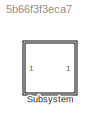
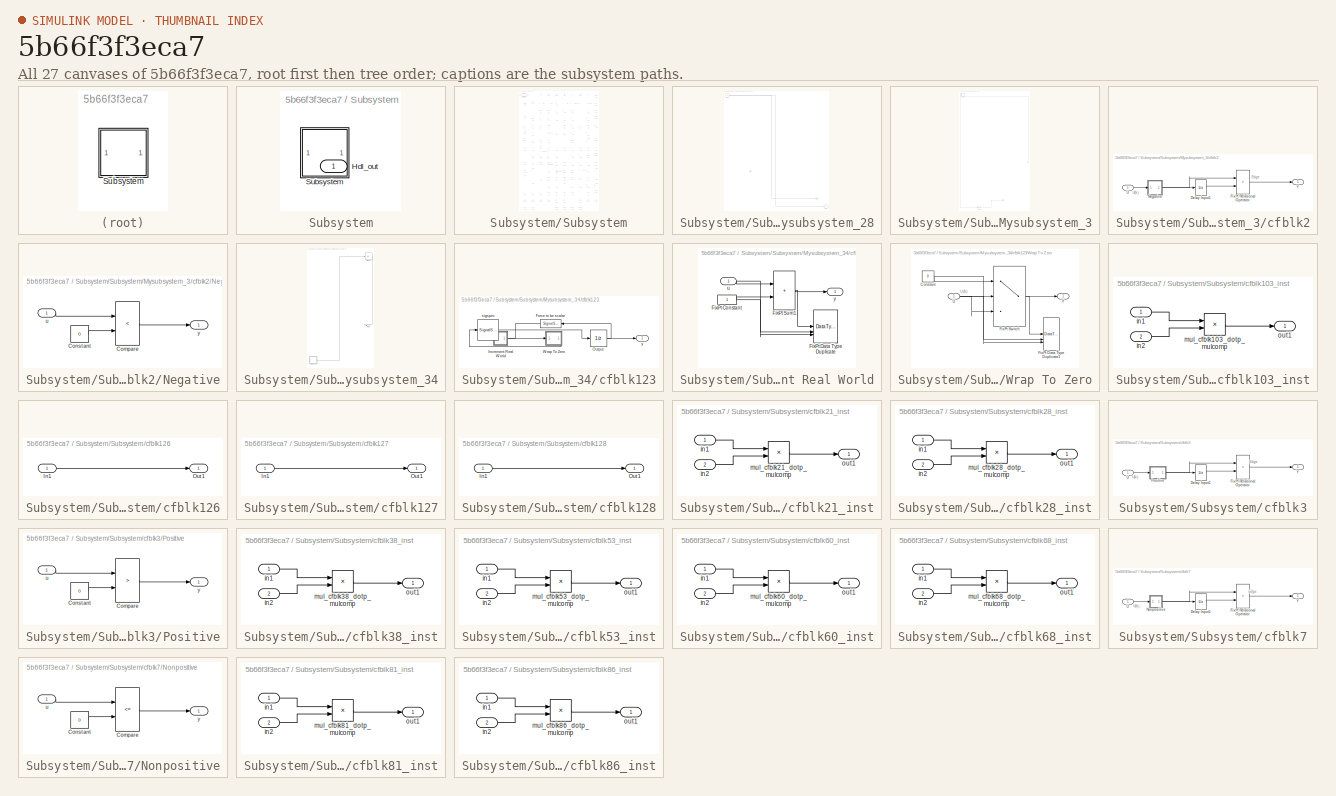
[diagram: thumbnail index - all 27 canvases of the model, root first then tree order]
MODEL slx_5b66f3f3eca7
KIND model
CONFIG AbsTol = auto
CONFIG EnableMultiTasking = off
CONFIG FixedStep = auto
CONFIG MaxStep = auto
CONFIG MinStep = auto
CONFIG RelTol = 1e-3
CONFIG SampleTimeConstraint = Unconstrained
CONFIG SolverName = VariableStepAuto
CONFIG StartTime = 0.0
CONFIG StopTime = 10.0
BLOCK [SubSystem] Subsystem
BLOCK [Outport] Subsystem/Hdl_out
  OutDataTypeStr = uint8
  SampleTime = 1
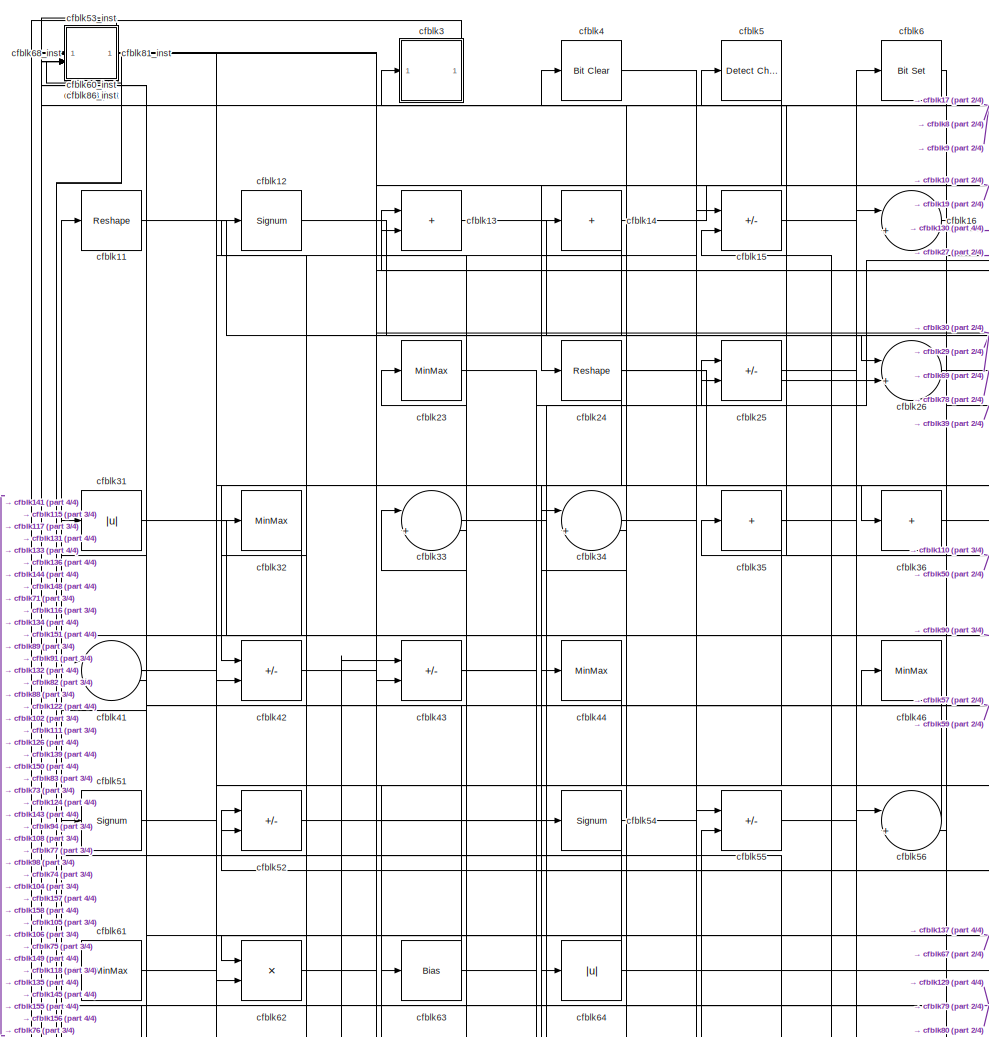
[diagram: Subsystem/Subsystem - part 1/4, top left region]
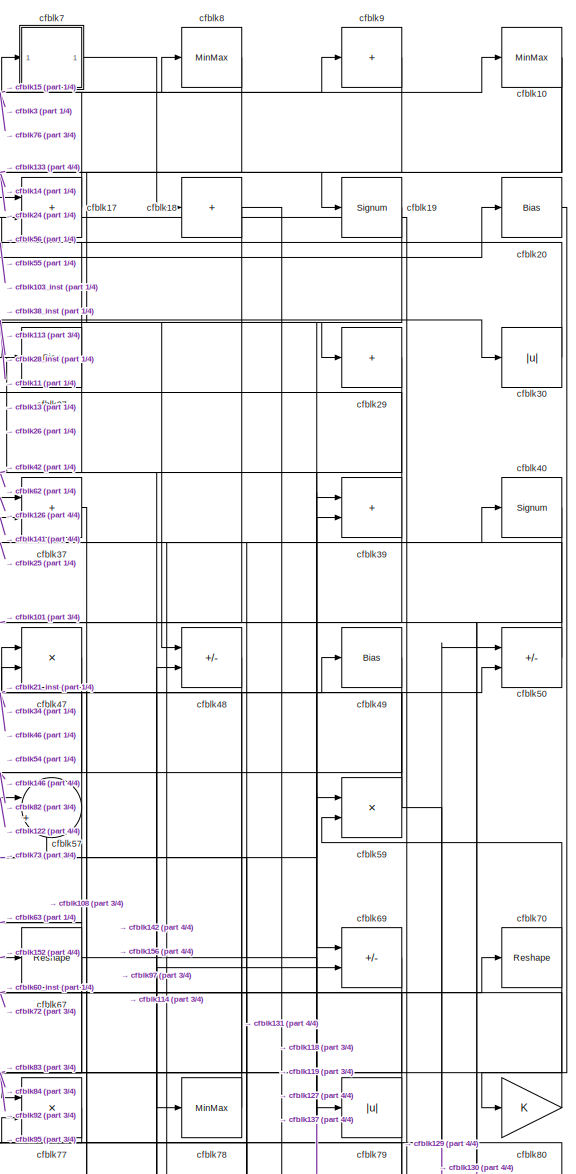
[diagram: Subsystem/Subsystem - part 2/4, top right region]
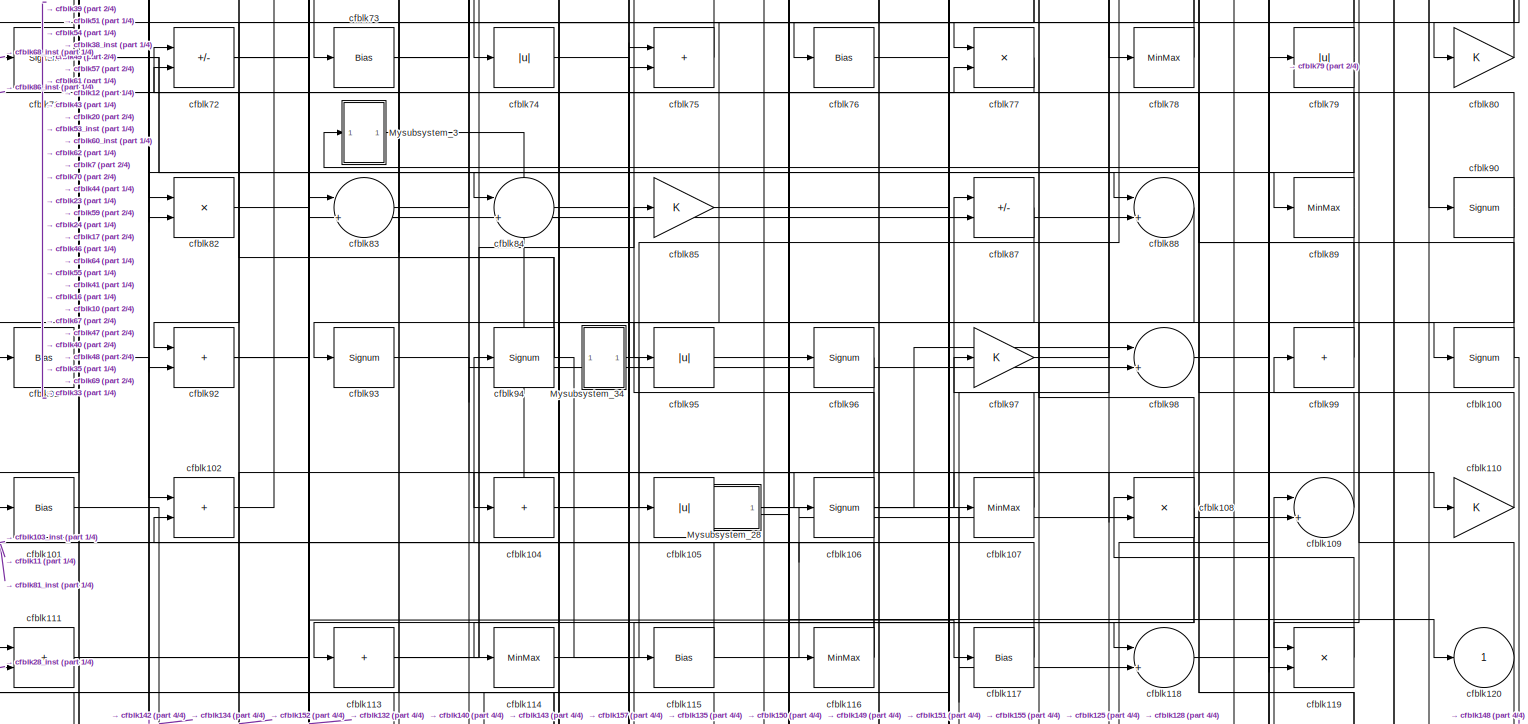
[diagram: Subsystem/Subsystem - part 3/4, full width, middle band]
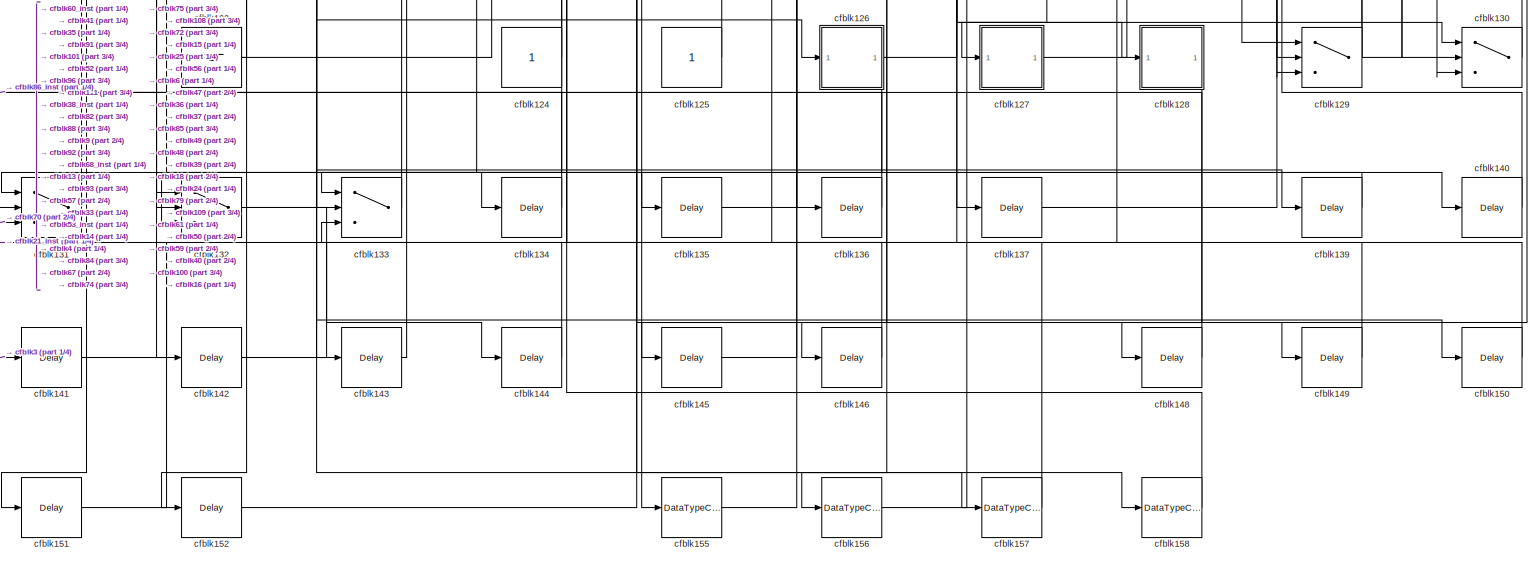
[diagram: Subsystem/Subsystem - part 4/4, full width, bottom band]
BLOCK [SubSystem] Subsystem/Subsystem
BLOCK [SubSystem] Subsystem/Subsystem/Mysubsystem_28
BLOCK [Inport] Subsystem/Subsystem/Mysubsystem_28/In1
  OutDataTypeStr = uint8
  PortDimensions = 1
  SampleTime = 1
BLOCK [Outport] Subsystem/Subsystem/Mysubsystem_28/Out1
  SampleTime = 1
BLOCK [Constant] Subsystem/Subsystem/Mysubsystem_28/cfblk1
  OutDataTypeStr = uint8
  SampleTime = 1
  Value = 0
BLOCK [Outport] Subsystem/Subsystem/Mysubsystem_28/cfblk120
  Port = 2
  SampleTime = 1
  VectorParamsAs1DForOutWhenUnconnected = off
BLOCK [SubSystem] Subsystem/Subsystem/Mysubsystem_3
BLOCK [Outport] Subsystem/Subsystem/Mysubsystem_3/Out1
  SampleTime = 1
BLOCK [Inport] Subsystem/Subsystem/Mysubsystem_3/U
  OutDataTypeStr = uint8
  PortDimensions = 1
  SampleTime = 1
BLOCK [DataTypeConversion] Subsystem/Subsystem/Mysubsystem_3/cfblk154
  OutDataTypeStr = uint8
  RndMeth = Floor
  SaturateOnIntegerOverflow = off
BLOCK [SubSystem] Subsystem/Subsystem/Mysubsystem_3/cfblk2
BLOCK [UnitDelay] Subsystem/Subsystem/Mysubsystem_3/cfblk2/Delay Input1
  Description = Store in Global RAM
  DisableCoverage = on
  HasFrameUpgradeWarning = on
  InitialCondition = vinit
  SampleTime = -1
BLOCK [RelationalOperator] Subsystem/Subsystem/Mysubsystem_3/cfblk2/FixPt Relational Operator
  InputSameDT = off
  Operator = >
  OutDataTypeStr = boolean
  ZeroCross = off
BLOCK [SubSystem] Subsystem/Subsystem/Mysubsystem_3/cfblk2/Negative
BLOCK [RelationalOperator] Subsystem/Subsystem/Mysubsystem_3/cfblk2/Negative/Compare
  Operator = <
  OutDataTypeStr = boolean
  ZeroCross = off
BLOCK [Constant] Subsystem/Subsystem/Mysubsystem_3/cfblk2/Negative/Constant
  DisableCoverage = on
  OutDataTypeStr = Inherit: Inherit via back propagation
  PreserveConstantTs = on
  SampleTime = -1
  Value = 0
BLOCK [Inport] Subsystem/Subsystem/Mysubsystem_3/cfblk2/Negative/u
  OutDataTypeStr = uint8
  SampleTime = 1
BLOCK [Outport] Subsystem/Subsystem/Mysubsystem_3/cfblk2/Negative/y
  SampleTime = 1
BLOCK [Inport] Subsystem/Subsystem/Mysubsystem_3/cfblk2/U
  OutDataTypeStr = uint8
  SampleTime = 1
BLOCK [Outport] Subsystem/Subsystem/Mysubsystem_3/cfblk2/Y
  SampleTime = 1
BLOCK [SubSystem] Subsystem/Subsystem/Mysubsystem_34
BLOCK [Outport] Subsystem/Subsystem/Mysubsystem_34/Out1
  SampleTime = 1
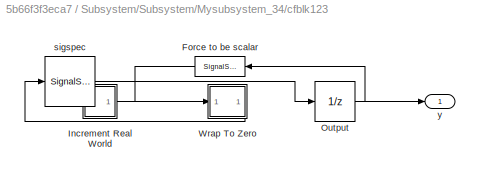
BLOCK [SubSystem] Subsystem/Subsystem/Mysubsystem_34/cfblk123
BLOCK [SignalSpecification] Subsystem/Subsystem/Mysubsystem_34/cfblk123/Force to be scalar
  Dimensions = 1
  DisableCoverage = on
BLOCK [SubSystem] Subsystem/Subsystem/Mysubsystem_34/cfblk123/Increment Real World
BLOCK [Constant] Subsystem/Subsystem/Mysubsystem_34/cfblk123/Increment Real World/FixPt Constant
  DisableCoverage = on
  OutDataTypeStr = Inherit: Inherit via back propagation
  SampleTime = -1
BLOCK [DataTypeDuplicate] Subsystem/Subsystem/Mysubsystem_34/cfblk123/Increment Real World/FixPt Data Type Duplicate
  DisableCoverage = on
  NumInputPorts = 3
BLOCK [Sum] Subsystem/Subsystem/Mysubsystem_34/cfblk123/Increment Real World/FixPt Sum1
  IconShape = rectangular
  InputSameDT = on
  LockScale = on
  OutDataTypeStr = Inherit: Inherit via back propagation
BLOCK [Inport] Subsystem/Subsystem/Mysubsystem_34/cfblk123/Increment Real World/u
  OutDataTypeStr = uint8
  SampleTime = 1
BLOCK [Outport] Subsystem/Subsystem/Mysubsystem_34/cfblk123/Increment Real World/y
  SampleTime = 1
BLOCK [UnitDelay] Subsystem/Subsystem/Mysubsystem_34/cfblk123/Output
  HasFrameUpgradeWarning = on
  InitialCondition = 0.0
  SampleTime = tsamp
BLOCK [SubSystem] Subsystem/Subsystem/Mysubsystem_34/cfblk123/Wrap To Zero
BLOCK [Constant] Subsystem/Subsystem/Mysubsystem_34/cfblk123/Wrap To Zero/Constant
  DisableCoverage = on
  OutDataTypeStr = Inherit: Inherit via back propagation
  SampleTime = -1
  Value = 0
BLOCK [DataTypeDuplicate] Subsystem/Subsystem/Mysubsystem_34/cfblk123/Wrap To Zero/FixPt Data Type Duplicate1
  DisableCoverage = on
  NumInputPorts = 3
BLOCK [Switch] Subsystem/Subsystem/Mysubsystem_34/cfblk123/Wrap To Zero/FixPt Switch
  Criteria = u2 > Threshold
  InputSameDT = off
  OutDataTypeStr = Inherit: Inherit via back propagation
  SaturateOnIntegerOverflow = off
  Threshold = Threshold
  ZeroCross = off
BLOCK [Inport] Subsystem/Subsystem/Mysubsystem_34/cfblk123/Wrap To Zero/U
  OutDataTypeStr = uint8
  SampleTime = 1
BLOCK [Outport] Subsystem/Subsystem/Mysubsystem_34/cfblk123/Wrap To Zero/Y
  SampleTime = 1
BLOCK [SignalSpecification] Subsystem/Subsystem/Mysubsystem_34/cfblk123/sigspec
  Dimensions = 1
  OutDataTypeStr = uint8
BLOCK [Outport] Subsystem/Subsystem/Mysubsystem_34/cfblk123/y
  SampleTime = 1
BLOCK [Abs] Subsystem/Subsystem/Mysubsystem_34/cfblk66
  SaturateOnIntegerOverflow = off
BLOCK [MinMax] Subsystem/Subsystem/cfblk10
  OutDataTypeStr = uint8
BLOCK [Signum] Subsystem/Subsystem/cfblk100
BLOCK [Bias] Subsystem/Subsystem/cfblk101
  Bias = 0.0
  SaturateOnIntegerOverflow = off
BLOCK [Sum] Subsystem/Subsystem/cfblk102
  IconShape = rectangular
  OutDataTypeStr = uint8
BLOCK [SubSystem] Subsystem/Subsystem/cfblk103_inst
BLOCK [Inport] Subsystem/Subsystem/cfblk103_inst/in1
  OutDataTypeStr = uint8
  SampleTime = 1
BLOCK [Inport] Subsystem/Subsystem/cfblk103_inst/in2
  OutDataTypeStr = uint8
  Port = 2
  SampleTime = 1
BLOCK [Product] Subsystem/Subsystem/cfblk103_inst/mul_cfblk103_dotp_mulcomp
  Inputs = **
  OutDataTypeStr = uint8
  SampleTime = 1
BLOCK [Outport] Subsystem/Subsystem/cfblk103_inst/out1
  OutDataTypeStr = uint8
  SampleTime = 1
BLOCK [Sum] Subsystem/Subsystem/cfblk104
  IconShape = rectangular
  Inputs = +
  OutDataTypeStr = uint8
BLOCK [Abs] Subsystem/Subsystem/cfblk105
  OutDataTypeStr = uint8
  SaturateOnIntegerOverflow = off
BLOCK [Signum] Subsystem/Subsystem/cfblk106
BLOCK [MinMax] Subsystem/Subsystem/cfblk107
  OutDataTypeStr = uint8
BLOCK [Product] Subsystem/Subsystem/cfblk108
  Inputs = */
  OutDataTypeStr = uint8
  RndMeth = Zero
  SaturateOnIntegerOverflow = on
BLOCK [Sum] Subsystem/Subsystem/cfblk109
  Inputs = |++
  OutDataTypeStr = uint8
BLOCK [Reshape] Subsystem/Subsystem/cfblk11
BLOCK [Gain] Subsystem/Subsystem/cfblk110
  OutDataTypeStr = uint8
BLOCK [Sum] Subsystem/Subsystem/cfblk111
  IconShape = rectangular
  OutDataTypeStr = uint8
BLOCK [Sum] Subsystem/Subsystem/cfblk113
  IconShape = rectangular
  Inputs = +
  OutDataTypeStr = uint8
BLOCK [MinMax] Subsystem/Subsystem/cfblk114
  OutDataTypeStr = uint8
BLOCK [Bias] Subsystem/Subsystem/cfblk115
  Bias = 0.0
  SaturateOnIntegerOverflow = off
BLOCK [MinMax] Subsystem/Subsystem/cfblk116
  OutDataTypeStr = uint8
BLOCK [Bias] Subsystem/Subsystem/cfblk117
  Bias = 0.0
  SaturateOnIntegerOverflow = off
BLOCK [Sum] Subsystem/Subsystem/cfblk118
  Inputs = |++
  OutDataTypeStr = uint8
BLOCK [Product] Subsystem/Subsystem/cfblk119
  Inputs = */
  OutDataTypeStr = uint8
  RndMeth = Zero
  SaturateOnIntegerOverflow = on
BLOCK [Signum] Subsystem/Subsystem/cfblk12
BLOCK [Outport] Subsystem/Subsystem/cfblk120
  OutDataTypeStr = uint8
  SampleTime = 1
  VectorParamsAs1DForOutWhenUnconnected = off
BLOCK [Ground] Subsystem/Subsystem/cfblk122
BLOCK [Constant] Subsystem/Subsystem/cfblk124
  OutDataTypeStr = uint8
  SampleTime = -1
BLOCK [Constant] Subsystem/Subsystem/cfblk125
  OutDataTypeStr = uint8
  SampleTime = -1
BLOCK [SubSystem] Subsystem/Subsystem/cfblk126
BLOCK [Inport] Subsystem/Subsystem/cfblk126/In1
  OutDataTypeStr = uint8
  PortDimensions = 1
  SampleTime = 1
BLOCK [Outport] Subsystem/Subsystem/cfblk126/Out1
  SampleTime = 1
BLOCK [SubSystem] Subsystem/Subsystem/cfblk127
BLOCK [Inport] Subsystem/Subsystem/cfblk127/In1
  OutDataTypeStr = uint8
  PortDimensions = 1
  SampleTime = 1
BLOCK [Outport] Subsystem/Subsystem/cfblk127/Out1
  SampleTime = 1
BLOCK [SubSystem] Subsystem/Subsystem/cfblk128
BLOCK [Inport] Subsystem/Subsystem/cfblk128/In1
  OutDataTypeStr = uint8
  PortDimensions = 1
  SampleTime = 1
BLOCK [Outport] Subsystem/Subsystem/cfblk128/Out1
  SampleTime = 1
BLOCK [Switch] Subsystem/Subsystem/cfblk129
  InputSameDT = off
  OutDataTypeStr = uint8
  SaturateOnIntegerOverflow = off
BLOCK [Sum] Subsystem/Subsystem/cfblk13
  IconShape = rectangular
  OutDataTypeStr = uint8
BLOCK [Switch] Subsystem/Subsystem/cfblk130
  InputSameDT = off
  OutDataTypeStr = uint8
  SaturateOnIntegerOverflow = off
BLOCK [Switch] Subsystem/Subsystem/cfblk131
  InputSameDT = off
  OutDataTypeStr = uint8
  SaturateOnIntegerOverflow = off
BLOCK [Switch] Subsystem/Subsystem/cfblk132
  InputSameDT = off
  OutDataTypeStr = uint8
  SaturateOnIntegerOverflow = off
BLOCK [Switch] Subsystem/Subsystem/cfblk133
  InputSameDT = off
  OutDataTypeStr = uint8
  SaturateOnIntegerOverflow = off
BLOCK [Delay] Subsystem/Subsystem/cfblk134
  InputPortMap = u0
  SampleTime = 1
BLOCK [Delay] Subsystem/Subsystem/cfblk135
  InputPortMap = u0
  SampleTime = 1
BLOCK [Delay] Subsystem/Subsystem/cfblk136
  InputPortMap = u0
  SampleTime = 1
BLOCK [Delay] Subsystem/Subsystem/cfblk137
  InputPortMap = u0
  SampleTime = 1
BLOCK [Delay] Subsystem/Subsystem/cfblk139
  InputPortMap = u0
  SampleTime = 1
BLOCK [Sum] Subsystem/Subsystem/cfblk14
  IconShape = rectangular
  Inputs = +
  OutDataTypeStr = uint8
BLOCK [Delay] Subsystem/Subsystem/cfblk140
  InputPortMap = u0
  SampleTime = 1
BLOCK [Delay] Subsystem/Subsystem/cfblk141
  InputPortMap = u0
  SampleTime = 1
BLOCK [Delay] Subsystem/Subsystem/cfblk142
  InputPortMap = u0
  SampleTime = 1
BLOCK [Delay] Subsystem/Subsystem/cfblk143
  InputPortMap = u0
  SampleTime = 1
BLOCK [Delay] Subsystem/Subsystem/cfblk144
  InputPortMap = u0
  SampleTime = 1
BLOCK [Delay] Subsystem/Subsystem/cfblk145
  InputPortMap = u0
  SampleTime = 1
BLOCK [Delay] Subsystem/Subsystem/cfblk146
  InputPortMap = u0
  SampleTime = 1
BLOCK [Delay] Subsystem/Subsystem/cfblk148
  InputPortMap = u0
  SampleTime = 1
BLOCK [Delay] Subsystem/Subsystem/cfblk149
  InputPortMap = u0
  SampleTime = 1
BLOCK [Sum] Subsystem/Subsystem/cfblk15
  IconShape = rectangular
  Inputs = +-
  OutDataTypeStr = uint8
BLOCK [Delay] Subsystem/Subsystem/cfblk150
  InputPortMap = u0
  SampleTime = 1
BLOCK [Delay] Subsystem/Subsystem/cfblk151
  InputPortMap = u0
  SampleTime = 1
BLOCK [Delay] Subsystem/Subsystem/cfblk152
  InputPortMap = u0
  SampleTime = 1
BLOCK [DataTypeConversion] Subsystem/Subsystem/cfblk155
  OutDataTypeStr = uint8
  RndMeth = Floor
  SaturateOnIntegerOverflow = off
BLOCK [DataTypeConversion] Subsystem/Subsystem/cfblk156
  OutDataTypeStr = uint8
  RndMeth = Floor
  SaturateOnIntegerOverflow = off
BLOCK [DataTypeConversion] Subsystem/Subsystem/cfblk157
  OutDataTypeStr = uint8
  RndMeth = Floor
  SaturateOnIntegerOverflow = off
BLOCK [DataTypeConversion] Subsystem/Subsystem/cfblk158
  OutDataTypeStr = uint8
  RndMeth = Floor
  SaturateOnIntegerOverflow = off
BLOCK [Sum] Subsystem/Subsystem/cfblk16
  Inputs = |++
  OutDataTypeStr = uint8
BLOCK [Sum] Subsystem/Subsystem/cfblk17
  IconShape = rectangular
  OutDataTypeStr = uint8
BLOCK [Sum] Subsystem/Subsystem/cfblk18
  IconShape = rectangular
  Inputs = +
  OutDataTypeStr = uint8
BLOCK [Signum] Subsystem/Subsystem/cfblk19
BLOCK [Bias] Subsystem/Subsystem/cfblk20
  Bias = 0.0
  SaturateOnIntegerOverflow = off
BLOCK [SubSystem] Subsystem/Subsystem/cfblk21_inst
BLOCK [Inport] Subsystem/Subsystem/cfblk21_inst/in1
  OutDataTypeStr = uint8
  SampleTime = 1
BLOCK [Inport] Subsystem/Subsystem/cfblk21_inst/in2
  OutDataTypeStr = uint8
  Port = 2
  SampleTime = 1
BLOCK [Product] Subsystem/Subsystem/cfblk21_inst/mul_cfblk21_dotp_mulcomp
  Inputs = **
  OutDataTypeStr = uint8
  SampleTime = 1
BLOCK [Outport] Subsystem/Subsystem/cfblk21_inst/out1
  OutDataTypeStr = uint8
  SampleTime = 1
BLOCK [MinMax] Subsystem/Subsystem/cfblk23
  OutDataTypeStr = uint8
BLOCK [Reshape] Subsystem/Subsystem/cfblk24
BLOCK [Sum] Subsystem/Subsystem/cfblk25
  IconShape = rectangular
  Inputs = +-
  OutDataTypeStr = uint8
BLOCK [Sum] Subsystem/Subsystem/cfblk26
  Inputs = |++
  OutDataTypeStr = uint8
BLOCK [Bias] Subsystem/Subsystem/cfblk27
  Bias = 0.0
  SaturateOnIntegerOverflow = off
BLOCK [SubSystem] Subsystem/Subsystem/cfblk28_inst
BLOCK [Inport] Subsystem/Subsystem/cfblk28_inst/in1
  OutDataTypeStr = uint8
  SampleTime = 1
BLOCK [Inport] Subsystem/Subsystem/cfblk28_inst/in2
  OutDataTypeStr = uint8
  Port = 2
  SampleTime = 1
BLOCK [Product] Subsystem/Subsystem/cfblk28_inst/mul_cfblk28_dotp_mulcomp
  Inputs = **
  OutDataTypeStr = uint8
  SampleTime = 1
BLOCK [Outport] Subsystem/Subsystem/cfblk28_inst/out1
  OutDataTypeStr = uint8
  SampleTime = 1
BLOCK [Sum] Subsystem/Subsystem/cfblk29
  IconShape = rectangular
  Inputs = +
  OutDataTypeStr = uint8
BLOCK [SubSystem] Subsystem/Subsystem/cfblk3
BLOCK [UnitDelay] Subsystem/Subsystem/cfblk3/Delay Input1
  Description = Store in Global RAM
  DisableCoverage = on
  HasFrameUpgradeWarning = on
  InitialCondition = vinit
  SampleTime = -1
BLOCK [RelationalOperator] Subsystem/Subsystem/cfblk3/FixPt Relational Operator
  InputSameDT = off
  Operator = >
  OutDataTypeStr = fixdt(0, 8)
  ZeroCross = off
BLOCK [SubSystem] Subsystem/Subsystem/cfblk3/Positive
BLOCK [RelationalOperator] Subsystem/Subsystem/cfblk3/Positive/Compare
  Operator = >
  OutDataTypeStr = boolean
  ZeroCross = off
BLOCK [Constant] Subsystem/Subsystem/cfblk3/Positive/Constant
  DisableCoverage = on
  OutDataTypeStr = Inherit: Inherit via back propagation
  PreserveConstantTs = on
  SampleTime = -1
  Value = 0
BLOCK [Inport] Subsystem/Subsystem/cfblk3/Positive/u
  OutDataTypeStr = uint8
  SampleTime = 1
BLOCK [Outport] Subsystem/Subsystem/cfblk3/Positive/y
  SampleTime = 1
BLOCK [Inport] Subsystem/Subsystem/cfblk3/U
  OutDataTypeStr = uint8
  SampleTime = 1
BLOCK [Outport] Subsystem/Subsystem/cfblk3/Y
  SampleTime = 1
BLOCK [Abs] Subsystem/Subsystem/cfblk30
  OutDataTypeStr = uint8
  SaturateOnIntegerOverflow = off
BLOCK [Abs] Subsystem/Subsystem/cfblk31
  OutDataTypeStr = uint8
  SaturateOnIntegerOverflow = off
BLOCK [MinMax] Subsystem/Subsystem/cfblk32
  OutDataTypeStr = uint8
BLOCK [Sum] Subsystem/Subsystem/cfblk33
  Inputs = |++
  OutDataTypeStr = uint8
BLOCK [Sum] Subsystem/Subsystem/cfblk34
  Inputs = |++
  OutDataTypeStr = uint8
BLOCK [Sum] Subsystem/Subsystem/cfblk35
  IconShape = rectangular
  Inputs = +
  OutDataTypeStr = uint8
BLOCK [Sum] Subsystem/Subsystem/cfblk36
  IconShape = rectangular
  Inputs = +
  OutDataTypeStr = uint8
BLOCK [Sum] Subsystem/Subsystem/cfblk37
  IconShape = rectangular
  OutDataTypeStr = uint8
BLOCK [SubSystem] Subsystem/Subsystem/cfblk38_inst
BLOCK [Inport] Subsystem/Subsystem/cfblk38_inst/in1
  OutDataTypeStr = uint8
  SampleTime = 1
BLOCK [Inport] Subsystem/Subsystem/cfblk38_inst/in2
  OutDataTypeStr = uint8
  Port = 2
  SampleTime = 1
BLOCK [Product] Subsystem/Subsystem/cfblk38_inst/mul_cfblk38_dotp_mulcomp
  Inputs = **
  OutDataTypeStr = uint8
  SampleTime = 1
BLOCK [Outport] Subsystem/Subsystem/cfblk38_inst/out1
  OutDataTypeStr = uint8
  SampleTime = 1
BLOCK [Sum] Subsystem/Subsystem/cfblk39
  IconShape = rectangular
  OutDataTypeStr = uint8
BLOCK [Reference] Subsystem/Subsystem/cfblk4  REF=simulink/Logic and Bit
Operations/Bit Clear
  LibrarySourceBlock = hdlsllib/Logic and Bit\nOperations/Bit Clear
  SourceBlock = simulink/Logic and Bit\nOperations/Bit Clear
  SourceType = Bit Clear
BLOCK [Signum] Subsystem/Subsystem/cfblk40
BLOCK [Sum] Subsystem/Subsystem/cfblk41
  Inputs = |++
  OutDataTypeStr = uint8
BLOCK [Sum] Subsystem/Subsystem/cfblk42
  IconShape = rectangular
  Inputs = +-
  OutDataTypeStr = uint8
BLOCK [Sum] Subsystem/Subsystem/cfblk43
  IconShape = rectangular
  Inputs = +-
  OutDataTypeStr = uint8
BLOCK [MinMax] Subsystem/Subsystem/cfblk44
  OutDataTypeStr = uint8
BLOCK [MinMax] Subsystem/Subsystem/cfblk46
  OutDataTypeStr = uint8
BLOCK [Product] Subsystem/Subsystem/cfblk47
  Inputs = */
  OutDataTypeStr = uint8
  RndMeth = Zero
  SaturateOnIntegerOverflow = on
BLOCK [Sum] Subsystem/Subsystem/cfblk48
  IconShape = rectangular
  Inputs = +-
  OutDataTypeStr = uint8
BLOCK [Bias] Subsystem/Subsystem/cfblk49
  Bias = 0.0
  SaturateOnIntegerOverflow = off
BLOCK [Reference] Subsystem/Subsystem/cfblk5  REF=simulink/Logic and Bit
Operations/Detect
Change
  LibrarySourceBlock = hdlsllib/Logic and Bit\nOperations/Detect\nChange
  SourceBlock = simulink/Logic and Bit\nOperations/Detect\nChange
  SourceType = Detect Change
BLOCK [Sum] Subsystem/Subsystem/cfblk50
  IconShape = rectangular
  Inputs = +-
  OutDataTypeStr = uint8
BLOCK [Signum] Subsystem/Subsystem/cfblk51
BLOCK [Sum] Subsystem/Subsystem/cfblk52
  IconShape = rectangular
  Inputs = +-
  OutDataTypeStr = uint8
BLOCK [SubSystem] Subsystem/Subsystem/cfblk53_inst
BLOCK [Inport] Subsystem/Subsystem/cfblk53_inst/in1
  OutDataTypeStr = uint8
  SampleTime = 1
BLOCK [Inport] Subsystem/Subsystem/cfblk53_inst/in2
  OutDataTypeStr = uint8
  Port = 2
  SampleTime = 1
BLOCK [Product] Subsystem/Subsystem/cfblk53_inst/mul_cfblk53_dotp_mulcomp
  Inputs = **
  OutDataTypeStr = uint8
  SampleTime = 1
BLOCK [Outport] Subsystem/Subsystem/cfblk53_inst/out1
  OutDataTypeStr = uint8
  SampleTime = 1
BLOCK [Signum] Subsystem/Subsystem/cfblk54
BLOCK [Sum] Subsystem/Subsystem/cfblk55
  IconShape = rectangular
  Inputs = +-
  OutDataTypeStr = uint8
BLOCK [Sum] Subsystem/Subsystem/cfblk56
  Inputs = |++
  OutDataTypeStr = uint8
BLOCK [Sum] Subsystem/Subsystem/cfblk57
  Inputs = |++
  OutDataTypeStr = uint8
BLOCK [Product] Subsystem/Subsystem/cfblk59
  Inputs = */
  OutDataTypeStr = uint8
  RndMeth = Zero
  SaturateOnIntegerOverflow = on
BLOCK [Reference] Subsystem/Subsystem/cfblk6  REF=simulink/Logic and Bit
Operations/Bit Set
  LibrarySourceBlock = hdlsllib/Logic and Bit\nOperations/Bit Set
  SourceBlock = simulink/Logic and Bit\nOperations/Bit Set
  SourceType = Bit Set
BLOCK [SubSystem] Subsystem/Subsystem/cfblk60_inst
BLOCK [Inport] Subsystem/Subsystem/cfblk60_inst/in1
  OutDataTypeStr = uint8
  SampleTime = 1
BLOCK [Inport] Subsystem/Subsystem/cfblk60_inst/in2
  OutDataTypeStr = uint8
  Port = 2
  SampleTime = 1
BLOCK [Product] Subsystem/Subsystem/cfblk60_inst/mul_cfblk60_dotp_mulcomp
  Inputs = **
  OutDataTypeStr = uint8
  SampleTime = 1
BLOCK [Outport] Subsystem/Subsystem/cfblk60_inst/out1
  OutDataTypeStr = uint8
  SampleTime = 1
BLOCK [MinMax] Subsystem/Subsystem/cfblk61
  OutDataTypeStr = uint8
BLOCK [Product] Subsystem/Subsystem/cfblk62
  Inputs = */
  OutDataTypeStr = uint8
  RndMeth = Zero
  SaturateOnIntegerOverflow = on
BLOCK [Bias] Subsystem/Subsystem/cfblk63
  Bias = 0.0
  SaturateOnIntegerOverflow = off
BLOCK [Abs] Subsystem/Subsystem/cfblk64
  OutDataTypeStr = uint8
  SaturateOnIntegerOverflow = off
BLOCK [Reshape] Subsystem/Subsystem/cfblk67
BLOCK [SubSystem] Subsystem/Subsystem/cfblk68_inst
BLOCK [Inport] Subsystem/Subsystem/cfblk68_inst/in1
  OutDataTypeStr = uint8
  SampleTime = 1
BLOCK [Inport] Subsystem/Subsystem/cfblk68_inst/in2
  OutDataTypeStr = uint8
  Port = 2
  SampleTime = 1
BLOCK [Product] Subsystem/Subsystem/cfblk68_inst/mul_cfblk68_dotp_mulcomp
  Inputs = **
  OutDataTypeStr = uint8
  SampleTime = 1
BLOCK [Outport] Subsystem/Subsystem/cfblk68_inst/out1
  OutDataTypeStr = uint8
  SampleTime = 1
BLOCK [Sum] Subsystem/Subsystem/cfblk69
  IconShape = rectangular
  Inputs = +-
  OutDataTypeStr = uint8
BLOCK [SubSystem] Subsystem/Subsystem/cfblk7
BLOCK [UnitDelay] Subsystem/Subsystem/cfblk7/Delay Input1
  Description = Store in Global RAM
  DisableCoverage = on
  HasFrameUpgradeWarning = on
  InitialCondition = vinit
  SampleTime = -1
BLOCK [RelationalOperator] Subsystem/Subsystem/cfblk7/FixPt Relational Operator
  InputSameDT = off
  Operator = >
  OutDataTypeStr = fixdt(0, 8)
  ZeroCross = off
BLOCK [SubSystem] Subsystem/Subsystem/cfblk7/Nonpositive
BLOCK [RelationalOperator] Subsystem/Subsystem/cfblk7/Nonpositive/Compare
  Operator = <=
  OutDataTypeStr = boolean
  ZeroCross = off
BLOCK [Constant] Subsystem/Subsystem/cfblk7/Nonpositive/Constant
  DisableCoverage = on
  OutDataTypeStr = Inherit: Inherit via back propagation
  PreserveConstantTs = on
  SampleTime = -1
  Value = 0
BLOCK [Inport] Subsystem/Subsystem/cfblk7/Nonpositive/u
  OutDataTypeStr = uint8
  SampleTime = 1
BLOCK [Outport] Subsystem/Subsystem/cfblk7/Nonpositive/y
  SampleTime = 1
BLOCK [Inport] Subsystem/Subsystem/cfblk7/U
  OutDataTypeStr = uint8
  SampleTime = 1
BLOCK [Outport] Subsystem/Subsystem/cfblk7/Y
  SampleTime = 1
BLOCK [Reshape] Subsystem/Subsystem/cfblk70
BLOCK [Signum] Subsystem/Subsystem/cfblk71
BLOCK [Sum] Subsystem/Subsystem/cfblk72
  IconShape = rectangular
  Inputs = +-
  OutDataTypeStr = uint8
BLOCK [Bias] Subsystem/Subsystem/cfblk73
  Bias = 0.0
  SaturateOnIntegerOverflow = off
BLOCK [Abs] Subsystem/Subsystem/cfblk74
  OutDataTypeStr = uint8
  SaturateOnIntegerOverflow = off
BLOCK [Sum] Subsystem/Subsystem/cfblk75
  IconShape = rectangular
  OutDataTypeStr = uint8
BLOCK [Bias] Subsystem/Subsystem/cfblk76
  Bias = 0.0
  SaturateOnIntegerOverflow = off
BLOCK [Product] Subsystem/Subsystem/cfblk77
  Inputs = */
  OutDataTypeStr = uint8
  RndMeth = Zero
  SaturateOnIntegerOverflow = on
BLOCK [MinMax] Subsystem/Subsystem/cfblk78
  OutDataTypeStr = uint8
BLOCK [Abs] Subsystem/Subsystem/cfblk79
  OutDataTypeStr = uint8
  SaturateOnIntegerOverflow = off
BLOCK [MinMax] Subsystem/Subsystem/cfblk8
  OutDataTypeStr = uint8
BLOCK [Gain] Subsystem/Subsystem/cfblk80
  OutDataTypeStr = uint8
BLOCK [SubSystem] Subsystem/Subsystem/cfblk81_inst
BLOCK [Inport] Subsystem/Subsystem/cfblk81_inst/in1
  OutDataTypeStr = uint8
  SampleTime = 1
BLOCK [Inport] Subsystem/Subsystem/cfblk81_inst/in2
  OutDataTypeStr = uint8
  Port = 2
  SampleTime = 1
BLOCK [Product] Subsystem/Subsystem/cfblk81_inst/mul_cfblk81_dotp_mulcomp
  Inputs = **
  OutDataTypeStr = uint8
  SampleTime = 1
BLOCK [Outport] Subsystem/Subsystem/cfblk81_inst/out1
  OutDataTypeStr = uint8
  SampleTime = 1
BLOCK [Product] Subsystem/Subsystem/cfblk82
  Inputs = */
  OutDataTypeStr = uint8
  RndMeth = Zero
  SaturateOnIntegerOverflow = on
BLOCK [Sum] Subsystem/Subsystem/cfblk83
  Inputs = |++
  OutDataTypeStr = uint8
BLOCK [Sum] Subsystem/Subsystem/cfblk84
  Inputs = |++
  OutDataTypeStr = uint8
BLOCK [Gain] Subsystem/Subsystem/cfblk85
  OutDataTypeStr = uint8
BLOCK [SubSystem] Subsystem/Subsystem/cfblk86_inst
BLOCK [Inport] Subsystem/Subsystem/cfblk86_inst/in1
  OutDataTypeStr = uint8
  SampleTime = 1
BLOCK [Inport] Subsystem/Subsystem/cfblk86_inst/in2
  OutDataTypeStr = uint8
  Port = 2
  SampleTime = 1
BLOCK [Product] Subsystem/Subsystem/cfblk86_inst/mul_cfblk86_dotp_mulcomp
  Inputs = **
  OutDataTypeStr = uint8
  SampleTime = 1
BLOCK [Outport] Subsystem/Subsystem/cfblk86_inst/out1
  OutDataTypeStr = uint8
  SampleTime = 1
BLOCK [Sum] Subsystem/Subsystem/cfblk87
  IconShape = rectangular
  Inputs = +-
  OutDataTypeStr = uint8
BLOCK [Sum] Subsystem/Subsystem/cfblk88
  Inputs = |++
  OutDataTypeStr = uint8
BLOCK [MinMax] Subsystem/Subsystem/cfblk89
  OutDataTypeStr = uint8
BLOCK [Sum] Subsystem/Subsystem/cfblk9
  IconShape = rectangular
  Inputs = +
  OutDataTypeStr = uint8
BLOCK [Signum] Subsystem/Subsystem/cfblk90
BLOCK [Bias] Subsystem/Subsystem/cfblk91
  Bias = 0.0
  SaturateOnIntegerOverflow = off
BLOCK [Sum] Subsystem/Subsystem/cfblk92
  IconShape = rectangular
  OutDataTypeStr = uint8
BLOCK [Signum] Subsystem/Subsystem/cfblk93
BLOCK [Signum] Subsystem/Subsystem/cfblk94
BLOCK [Abs] Subsystem/Subsystem/cfblk95
  OutDataTypeStr = uint8
  SaturateOnIntegerOverflow = off
BLOCK [Signum] Subsystem/Subsystem/cfblk96
BLOCK [Gain] Subsystem/Subsystem/cfblk97
  OutDataTypeStr = uint8
BLOCK [Sum] Subsystem/Subsystem/cfblk98
  Inputs = |++
  OutDataTypeStr = uint8
BLOCK [Sum] Subsystem/Subsystem/cfblk99
  IconShape = rectangular
  Inputs = +
  OutDataTypeStr = uint8
ANNOTATION Subsystem/Subsystem/Mysubsystem_3/cfblk2: Edge
ANNOTATION Subsystem/Subsystem/Mysubsystem_3/cfblk2: U(k)
ANNOTATION Subsystem/Subsystem/Mysubsystem_34/cfblk123/Wrap To Zero: U(k)
ANNOTATION Subsystem/Subsystem/cfblk3: Edge
ANNOTATION Subsystem/Subsystem/cfblk3: U(k)
ANNOTATION Subsystem/Subsystem/cfblk7: Edge
ANNOTATION Subsystem/Subsystem/cfblk7: U(k)
NET Subsystem/Subsystem/Mysubsystem_28/cfblk1:1 -> Subsystem/Subsystem/Mysubsystem_28/Out1:1, Subsystem/Subsystem/Mysubsystem_28/cfblk120:1
LINE Subsystem/Subsystem/Mysubsystem_28:1 -> Subsystem/Subsystem/cfblk109:2
LINE Subsystem/Subsystem/Mysubsystem_28:2 -> Subsystem/Subsystem/cfblk120:1
LINE Subsystem/Subsystem/Mysubsystem_3/U:1 -> Subsystem/Subsystem/Mysubsystem_3/cfblk2:1
LINE Subsystem/Subsystem/Mysubsystem_3/cfblk154:1 -> Subsystem/Subsystem/Mysubsystem_3/Out1:1
LINE Subsystem/Subsystem/Mysubsystem_3/cfblk2:1 -> Subsystem/Subsystem/Mysubsystem_3/cfblk154:1
LINE Subsystem/Subsystem/Mysubsystem_34/cfblk123:1 -> Subsystem/Subsystem/Mysubsystem_34/cfblk66:1
LINE Subsystem/Subsystem/Mysubsystem_34/cfblk66:1 -> Subsystem/Subsystem/Mysubsystem_34/Out1:1
LINE Subsystem/Subsystem/Mysubsystem_34:1 -> Subsystem/Subsystem/cfblk106:1
LINE Subsystem/Subsystem/Mysubsystem_3:1 -> Subsystem/Subsystem/Mysubsystem_28:1
NET Subsystem/Subsystem/cfblk100:1 -> Subsystem/Subsystem/Mysubsystem_3:1, Subsystem/Subsystem/cfblk148:1
LINE Subsystem/Subsystem/cfblk101:1 -> Subsystem/Subsystem/cfblk134:1
LINE Subsystem/Subsystem/cfblk102:1 -> Subsystem/Subsystem/cfblk43:1
LINE Subsystem/Subsystem/cfblk103_inst/in1:1 -> Subsystem/Subsystem/cfblk103_inst/mul_cfblk103_dotp_mulcomp:1
LINE Subsystem/Subsystem/cfblk103_inst/in2:1 -> Subsystem/Subsystem/cfblk103_inst/mul_cfblk103_dotp_mulcomp:2
LINE Subsystem/Subsystem/cfblk103_inst/mul_cfblk103_dotp_mulcomp:1 -> Subsystem/Subsystem/cfblk103_inst/out1:1
LINE Subsystem/Subsystem/cfblk103_inst:1 -> Subsystem/Subsystem/cfblk38_inst:2
LINE Subsystem/Subsystem/cfblk104:1 -> Subsystem/Subsystem/cfblk110:1
LINE Subsystem/Subsystem/cfblk105:1 -> Subsystem/Subsystem/cfblk98:1
NET Subsystem/Subsystem/cfblk106:1 -> Subsystem/Subsystem/cfblk102:2, Subsystem/Subsystem/cfblk118:2, Subsystem/Subsystem/cfblk55:2, Subsystem/Subsystem/cfblk87:1
LINE Subsystem/Subsystem/cfblk107:1 -> Subsystem/Subsystem/cfblk97:1
NET Subsystem/Subsystem/cfblk108:1 -> Subsystem/Subsystem/cfblk113:1, Subsystem/Subsystem/cfblk155:1, Subsystem/Subsystem/cfblk47:1
LINE Subsystem/Subsystem/cfblk109:1 -> Subsystem/Subsystem/cfblk99:1
NET Subsystem/Subsystem/cfblk10:1 -> Subsystem/Subsystem/cfblk24:1, Subsystem/Subsystem/cfblk56:2
LINE Subsystem/Subsystem/cfblk110:1 -> Subsystem/Subsystem/cfblk35:1
NET Subsystem/Subsystem/cfblk111:1 -> Subsystem/Subsystem/cfblk140:1, Subsystem/Subsystem/cfblk55:1
NET Subsystem/Subsystem/cfblk113:1 -> Subsystem/Subsystem/cfblk17:2, Subsystem/Subsystem/cfblk85:1
LINE Subsystem/Subsystem/cfblk114:1 -> Subsystem/Subsystem/cfblk40:1
NET Subsystem/Subsystem/cfblk115:1 -> Subsystem/Subsystem/cfblk81_inst:2, Subsystem/Subsystem/cfblk87:2
NET Subsystem/Subsystem/cfblk116:1 -> Subsystem/Subsystem/cfblk11:1, Subsystem/Subsystem/cfblk94:1
LINE Subsystem/Subsystem/cfblk117:1 -> Subsystem/Subsystem/cfblk103_inst:1
LINE Subsystem/Subsystem/cfblk118:1 -> Subsystem/Subsystem/cfblk79:1
LINE Subsystem/Subsystem/cfblk119:1 -> Subsystem/Subsystem/cfblk108:1
LINE Subsystem/Subsystem/cfblk11:1 -> Subsystem/Subsystem/cfblk29:1
NET Subsystem/Subsystem/cfblk122:1 -> Subsystem/Subsystem/cfblk52:1, Subsystem/Subsystem/cfblk57:1
NET Subsystem/Subsystem/cfblk124:1 -> Subsystem/Subsystem/cfblk133:1, Subsystem/Subsystem/cfblk33:2, Subsystem/Subsystem/cfblk53_inst:2
LINE Subsystem/Subsystem/cfblk125:1 -> Subsystem/Subsystem/cfblk72:1
LINE Subsystem/Subsystem/cfblk126/In1:1 -> Subsystem/Subsystem/cfblk126/Out1:1
NET Subsystem/Subsystem/cfblk126:1 -> Subsystem/Subsystem/cfblk132:3, Subsystem/Subsystem/cfblk37:1
LINE Subsystem/Subsystem/cfblk127/In1:1 -> Subsystem/Subsystem/cfblk127/Out1:1
LINE Subsystem/Subsystem/cfblk127:1 -> Subsystem/Subsystem/cfblk39:1
LINE Subsystem/Subsystem/cfblk128/In1:1 -> Subsystem/Subsystem/cfblk128/Out1:1
LINE Subsystem/Subsystem/cfblk128:1 -> Subsystem/Subsystem/cfblk145:1
NET Subsystem/Subsystem/cfblk129:1 -> Subsystem/Subsystem/cfblk50:1, Subsystem/Subsystem/cfblk52:2, Subsystem/Subsystem/cfblk61:1
LINE Subsystem/Subsystem/cfblk12:1 -> Subsystem/Subsystem/cfblk26:1
LINE Subsystem/Subsystem/cfblk130:1 -> Subsystem/Subsystem/cfblk16:2
LINE Subsystem/Subsystem/cfblk131:1 -> Subsystem/Subsystem/cfblk60_inst:2
NET Subsystem/Subsystem/cfblk132:1 -> Subsystem/Subsystem/cfblk144:1, Subsystem/Subsystem/cfblk88:2
LINE Subsystem/Subsystem/cfblk133:1 -> Subsystem/Subsystem/cfblk68_inst:2
LINE Subsystem/Subsystem/cfblk134:1 -> Subsystem/Subsystem/cfblk41:1
LINE Subsystem/Subsystem/cfblk135:1 -> Subsystem/Subsystem/cfblk16:1
LINE Subsystem/Subsystem/cfblk136:1 -> Subsystem/Subsystem/cfblk68_inst:1
LINE Subsystem/Subsystem/cfblk137:1 -> Subsystem/Subsystem/cfblk39:2
LINE Subsystem/Subsystem/cfblk139:1 -> Subsystem/Subsystem/cfblk131:1
LINE Subsystem/Subsystem/cfblk13:1 -> Subsystem/Subsystem/cfblk69:1
LINE Subsystem/Subsystem/cfblk140:1 -> Subsystem/Subsystem/cfblk109:1
LINE Subsystem/Subsystem/cfblk141:1 -> Subsystem/Subsystem/cfblk37:2
LINE Subsystem/Subsystem/cfblk142:1 -> Subsystem/Subsystem/cfblk48:2
LINE Subsystem/Subsystem/cfblk143:1 -> Subsystem/Subsystem/cfblk13:1
LINE Subsystem/Subsystem/cfblk144:1 -> Subsystem/Subsystem/cfblk21_inst:1
LINE Subsystem/Subsystem/cfblk145:1 -> Subsystem/Subsystem/cfblk56:1
LINE Subsystem/Subsystem/cfblk146:1 -> Subsystem/Subsystem/cfblk133:3
LINE Subsystem/Subsystem/cfblk148:1 -> Subsystem/Subsystem/cfblk86_inst:2
LINE Subsystem/Subsystem/cfblk149:1 -> Subsystem/Subsystem/cfblk15:2
NET Subsystem/Subsystem/cfblk14:1 -> Subsystem/Subsystem/cfblk19:1, Subsystem/Subsystem/cfblk62:1
LINE Subsystem/Subsystem/cfblk150:1 -> Subsystem/Subsystem/cfblk84:2
LINE Subsystem/Subsystem/cfblk151:1 -> Subsystem/Subsystem/cfblk75:2
LINE Subsystem/Subsystem/cfblk152:1 -> Subsystem/Subsystem/cfblk67:1
LINE Subsystem/Subsystem/cfblk155:1 -> Subsystem/Subsystem/cfblk6:1
LINE Subsystem/Subsystem/cfblk156:1 -> Subsystem/Subsystem/cfblk49:1
LINE Subsystem/Subsystem/cfblk157:1 -> Subsystem/Subsystem/cfblk4:1
LINE Subsystem/Subsystem/cfblk158:1 -> Subsystem/Subsystem/cfblk14:1
LINE Subsystem/Subsystem/cfblk15:1 -> Subsystem/Subsystem/cfblk9:1
LINE Subsystem/Subsystem/cfblk16:1 -> Subsystem/Subsystem/cfblk76:1
LINE Subsystem/Subsystem/cfblk17:1 -> Subsystem/Subsystem/cfblk3:1
NET Subsystem/Subsystem/cfblk18:1 -> Subsystem/Subsystem/cfblk129:1, Subsystem/Subsystem/cfblk131:2
LINE Subsystem/Subsystem/cfblk19:1 -> Subsystem/Subsystem/cfblk48:1
LINE Subsystem/Subsystem/cfblk20:1 -> Subsystem/Subsystem/cfblk80:1
LINE Subsystem/Subsystem/cfblk21_inst/in1:1 -> Subsystem/Subsystem/cfblk21_inst/mul_cfblk21_dotp_mulcomp:1
LINE Subsystem/Subsystem/cfblk21_inst/in2:1 -> Subsystem/Subsystem/cfblk21_inst/mul_cfblk21_dotp_mulcomp:2
LINE Subsystem/Subsystem/cfblk21_inst/mul_cfblk21_dotp_mulcomp:1 -> Subsystem/Subsystem/cfblk21_inst/out1:1
LINE Subsystem/Subsystem/cfblk21_inst:1 -> Subsystem/Subsystem/cfblk132:1
LINE Subsystem/Subsystem/cfblk23:1 -> Subsystem/Subsystem/cfblk77:1
NET Subsystem/Subsystem/cfblk24:1 -> Subsystem/Subsystem/cfblk129:3, Subsystem/Subsystem/cfblk26:2, Subsystem/Subsystem/cfblk74:1
LINE Subsystem/Subsystem/cfblk25:1 -> Subsystem/Subsystem/cfblk136:1
LINE Subsystem/Subsystem/cfblk26:1 -> Subsystem/Subsystem/cfblk78:1
NET Subsystem/Subsystem/cfblk27:1 -> Subsystem/Subsystem/cfblk38_inst:1, Subsystem/Subsystem/cfblk62:2
LINE Subsystem/Subsystem/cfblk28_inst/in1:1 -> Subsystem/Subsystem/cfblk28_inst/mul_cfblk28_dotp_mulcomp:1
LINE Subsystem/Subsystem/cfblk28_inst/in2:1 -> Subsystem/Subsystem/cfblk28_inst/mul_cfblk28_dotp_mulcomp:2
LINE Subsystem/Subsystem/cfblk28_inst/mul_cfblk28_dotp_mulcomp:1 -> Subsystem/Subsystem/cfblk28_inst/out1:1
NET Subsystem/Subsystem/cfblk28_inst:1 -> Subsystem/Subsystem/cfblk111:2, Subsystem/Subsystem/cfblk30:1
LINE Subsystem/Subsystem/cfblk29:1 -> Subsystem/Subsystem/cfblk42:1
LINE Subsystem/Subsystem/cfblk30:1 -> Subsystem/Subsystem/cfblk103_inst:2
LINE Subsystem/Subsystem/cfblk31:1 -> Subsystem/Subsystem/cfblk44:1
LINE Subsystem/Subsystem/cfblk32:1 -> Subsystem/Subsystem/cfblk42:2
LINE Subsystem/Subsystem/cfblk33:1 -> Subsystem/Subsystem/cfblk90:1
LINE Subsystem/Subsystem/cfblk34:1 -> Subsystem/Subsystem/cfblk36:1
NET Subsystem/Subsystem/cfblk35:1 -> Subsystem/Subsystem/cfblk118:1, Subsystem/Subsystem/cfblk132:2, Subsystem/Subsystem/cfblk5:1
LINE Subsystem/Subsystem/cfblk36:1 -> Subsystem/Subsystem/cfblk130:1
LINE Subsystem/Subsystem/cfblk37:1 -> Subsystem/Subsystem/cfblk127:1
LINE Subsystem/Subsystem/cfblk38_inst/in1:1 -> Subsystem/Subsystem/cfblk38_inst/mul_cfblk38_dotp_mulcomp:1
LINE Subsystem/Subsystem/cfblk38_inst/in2:1 -> Subsystem/Subsystem/cfblk38_inst/mul_cfblk38_dotp_mulcomp:2
LINE Subsystem/Subsystem/cfblk38_inst/mul_cfblk38_dotp_mulcomp:1 -> Subsystem/Subsystem/cfblk38_inst/out1:1
NET Subsystem/Subsystem/cfblk38_inst:1 -> Subsystem/Subsystem/cfblk150:1, Subsystem/Subsystem/cfblk82:1
NET Subsystem/Subsystem/cfblk39:1 -> Subsystem/Subsystem/cfblk101:1, Subsystem/Subsystem/cfblk13:2
LINE Subsystem/Subsystem/cfblk3:1 -> Subsystem/Subsystem/cfblk141:1
LINE Subsystem/Subsystem/cfblk40:1 -> Subsystem/Subsystem/cfblk130:3
NET Subsystem/Subsystem/cfblk41:1 -> Subsystem/Subsystem/cfblk151:1, Subsystem/Subsystem/cfblk15:1
LINE Subsystem/Subsystem/cfblk42:1 -> Subsystem/Subsystem/cfblk8:1
NET Subsystem/Subsystem/cfblk43:1 -> Subsystem/Subsystem/cfblk108:2, Subsystem/Subsystem/cfblk98:2
LINE Subsystem/Subsystem/cfblk44:1 -> Subsystem/Subsystem/cfblk73:1
LINE Subsystem/Subsystem/cfblk46:1 -> Subsystem/Subsystem/cfblk104:1
LINE Subsystem/Subsystem/cfblk47:1 -> Subsystem/Subsystem/cfblk146:1
LINE Subsystem/Subsystem/cfblk48:1 -> Subsystem/Subsystem/cfblk92:1
LINE Subsystem/Subsystem/cfblk49:1 -> Subsystem/Subsystem/cfblk82:2
LINE Subsystem/Subsystem/cfblk4:1 -> Subsystem/Subsystem/cfblk158:1
LINE Subsystem/Subsystem/cfblk50:1 -> Subsystem/Subsystem/cfblk25:1
LINE Subsystem/Subsystem/cfblk51:1 -> Subsystem/Subsystem/cfblk64:1
LINE Subsystem/Subsystem/cfblk52:1 -> Subsystem/Subsystem/cfblk137:1
LINE Subsystem/Subsystem/cfblk53_inst/in1:1 -> Subsystem/Subsystem/cfblk53_inst/mul_cfblk53_dotp_mulcomp:1
LINE Subsystem/Subsystem/cfblk53_inst/in2:1 -> Subsystem/Subsystem/cfblk53_inst/mul_cfblk53_dotp_mulcomp:2
LINE Subsystem/Subsystem/cfblk53_inst/mul_cfblk53_dotp_mulcomp:1 -> Subsystem/Subsystem/cfblk53_inst/out1:1
LINE Subsystem/Subsystem/cfblk53_inst:1 -> Subsystem/Subsystem/cfblk117:1
NET Subsystem/Subsystem/cfblk54:1 -> Subsystem/Subsystem/cfblk50:2, Subsystem/Subsystem/cfblk91:1
LINE Subsystem/Subsystem/cfblk55:1 -> Subsystem/Subsystem/cfblk17:1
LINE Subsystem/Subsystem/cfblk56:1 -> Subsystem/Subsystem/cfblk33:1
NET Subsystem/Subsystem/cfblk57:1 -> Subsystem/Subsystem/cfblk21_inst:2, Subsystem/Subsystem/cfblk92:2
NET Subsystem/Subsystem/cfblk59:1 -> Subsystem/Subsystem/cfblk130:2, Subsystem/Subsystem/cfblk28_inst:2, Subsystem/Subsystem/cfblk34:2
LINE Subsystem/Subsystem/cfblk5:1 -> Subsystem/Subsystem/cfblk43:2
LINE Subsystem/Subsystem/cfblk60_inst/in1:1 -> Subsystem/Subsystem/cfblk60_inst/mul_cfblk60_dotp_mulcomp:1
LINE Subsystem/Subsystem/cfblk60_inst/in2:1 -> Subsystem/Subsystem/cfblk60_inst/mul_cfblk60_dotp_mulcomp:2
LINE Subsystem/Subsystem/cfblk60_inst/mul_cfblk60_dotp_mulcomp:1 -> Subsystem/Subsystem/cfblk60_inst/out1:1
NET Subsystem/Subsystem/cfblk60_inst:1 -> Subsystem/Subsystem/cfblk111:1, Subsystem/Subsystem/cfblk139:1, Subsystem/Subsystem/cfblk54:1
LINE Subsystem/Subsystem/cfblk61:1 -> Subsystem/Subsystem/cfblk88:1
LINE Subsystem/Subsystem/cfblk62:1 -> Subsystem/Subsystem/cfblk83:1
NET Subsystem/Subsystem/cfblk63:1 -> Subsystem/Subsystem/cfblk25:2, Subsystem/Subsystem/cfblk28_inst:1, Subsystem/Subsystem/cfblk32:1
NET Subsystem/Subsystem/cfblk64:1 -> Subsystem/Subsystem/cfblk105:1, Subsystem/Subsystem/cfblk31:1
NET Subsystem/Subsystem/cfblk67:1 -> Subsystem/Subsystem/cfblk119:2, Subsystem/Subsystem/cfblk63:1, Subsystem/Subsystem/cfblk83:2, Subsystem/Subsystem/cfblk95:1
LINE Subsystem/Subsystem/cfblk68_inst/in1:1 -> Subsystem/Subsystem/cfblk68_inst/mul_cfblk68_dotp_mulcomp:1
LINE Subsystem/Subsystem/cfblk68_inst/in2:1 -> Subsystem/Subsystem/cfblk68_inst/mul_cfblk68_dotp_mulcomp:2
LINE Subsystem/Subsystem/cfblk68_inst/mul_cfblk68_dotp_mulcomp:1 -> Subsystem/Subsystem/cfblk68_inst/out1:1
NET Subsystem/Subsystem/cfblk68_inst:1 -> Subsystem/Subsystem/cfblk126:1, Subsystem/Subsystem/cfblk71:1
LINE Subsystem/Subsystem/cfblk69:1 -> Subsystem/Subsystem/cfblk84:1
LINE Subsystem/Subsystem/cfblk6:1 -> Subsystem/Subsystem/cfblk156:1
NET Subsystem/Subsystem/cfblk70:1 -> Subsystem/Subsystem/cfblk131:3, Subsystem/Subsystem/cfblk59:2
NET Subsystem/Subsystem/cfblk71:1 -> Subsystem/Subsystem/cfblk116:1, Subsystem/Subsystem/cfblk53_inst:1, Subsystem/Subsystem/cfblk89:1
NET Subsystem/Subsystem/cfblk72:1 -> Subsystem/Subsystem/cfblk20:1, Subsystem/Subsystem/cfblk70:1
NET Subsystem/Subsystem/cfblk73:1 -> Subsystem/Subsystem/cfblk47:2, Subsystem/Subsystem/cfblk59:1
LINE Subsystem/Subsystem/cfblk74:1 -> Subsystem/Subsystem/cfblk149:1
LINE Subsystem/Subsystem/cfblk75:1 -> Subsystem/Subsystem/cfblk41:2
LINE Subsystem/Subsystem/cfblk76:1 -> Subsystem/Subsystem/cfblk10:1
LINE Subsystem/Subsystem/cfblk77:1 -> Subsystem/Subsystem/cfblk72:2
LINE Subsystem/Subsystem/cfblk78:1 -> Subsystem/Subsystem/cfblk46:1
NET Subsystem/Subsystem/cfblk79:1 -> Subsystem/Subsystem/cfblk129:2, Subsystem/Subsystem/cfblk60_inst:1
LINE Subsystem/Subsystem/cfblk7:1 -> Subsystem/Subsystem/cfblk18:1
LINE Subsystem/Subsystem/cfblk80:1 -> Subsystem/Subsystem/cfblk34:1
LINE Subsystem/Subsystem/cfblk81_inst/in1:1 -> Subsystem/Subsystem/cfblk81_inst/mul_cfblk81_dotp_mulcomp:1
LINE Subsystem/Subsystem/cfblk81_inst/in2:1 -> Subsystem/Subsystem/cfblk81_inst/mul_cfblk81_dotp_mulcomp:2
LINE Subsystem/Subsystem/cfblk81_inst/mul_cfblk81_dotp_mulcomp:1 -> Subsystem/Subsystem/cfblk81_inst/out1:1
LINE Subsystem/Subsystem/cfblk81_inst:1 -> Subsystem/Subsystem/cfblk102:1
LINE Subsystem/Subsystem/cfblk82:1 -> Subsystem/Subsystem/cfblk157:1
LINE Subsystem/Subsystem/cfblk83:1 -> Subsystem/Subsystem/cfblk57:2
LINE Subsystem/Subsystem/cfblk84:1 -> Subsystem/Subsystem/cfblk77:2
LINE Subsystem/Subsystem/cfblk85:1 -> Subsystem/Subsystem/cfblk128:1
LINE Subsystem/Subsystem/cfblk86_inst/in1:1 -> Subsystem/Subsystem/cfblk86_inst/mul_cfblk86_dotp_mulcomp:1
LINE Subsystem/Subsystem/cfblk86_inst/in2:1 -> Subsystem/Subsystem/cfblk86_inst/mul_cfblk86_dotp_mulcomp:2
LINE Subsystem/Subsystem/cfblk86_inst/mul_cfblk86_dotp_mulcomp:1 -> Subsystem/Subsystem/cfblk86_inst/out1:1
LINE Subsystem/Subsystem/cfblk86_inst:1 -> Subsystem/Subsystem/cfblk81_inst:1
LINE Subsystem/Subsystem/cfblk87:1 -> Subsystem/Subsystem/cfblk114:1
LINE Subsystem/Subsystem/cfblk88:1 -> Subsystem/Subsystem/cfblk93:1
NET Subsystem/Subsystem/cfblk89:1 -> Subsystem/Subsystem/cfblk107:1, Subsystem/Subsystem/cfblk51:1
LINE Subsystem/Subsystem/cfblk8:1 -> Subsystem/Subsystem/cfblk27:1
NET Subsystem/Subsystem/cfblk90:1 -> Subsystem/Subsystem/cfblk119:1, Subsystem/Subsystem/cfblk86_inst:1
LINE Subsystem/Subsystem/cfblk91:1 -> Subsystem/Subsystem/cfblk142:1
NET Subsystem/Subsystem/cfblk92:1 -> Subsystem/Subsystem/cfblk143:1, Subsystem/Subsystem/cfblk7:1
LINE Subsystem/Subsystem/cfblk93:1 -> Subsystem/Subsystem/cfblk135:1
NET Subsystem/Subsystem/cfblk94:1 -> Subsystem/Subsystem/cfblk115:1, Subsystem/Subsystem/cfblk12:1, Subsystem/Subsystem/cfblk23:1
LINE Subsystem/Subsystem/cfblk95:1 -> Subsystem/Subsystem/cfblk96:1
LINE Subsystem/Subsystem/cfblk96:1 -> Subsystem/Subsystem/cfblk152:1
LINE Subsystem/Subsystem/cfblk97:1 -> Subsystem/Subsystem/cfblk69:2
LINE Subsystem/Subsystem/cfblk98:1 -> Subsystem/Subsystem/cfblk100:1
LINE Subsystem/Subsystem/cfblk99:1 -> Subsystem/Subsystem/cfblk75:1
LINE Subsystem/Subsystem/cfblk9:1 -> Subsystem/Subsystem/cfblk133:2
LINE Subsystem/Subsystem:1 -> Subsystem/Hdl_out:1
note: NET lines group one-source signal fan-out (src -> all destinations, sorted); 1:1 wires keep LINE
